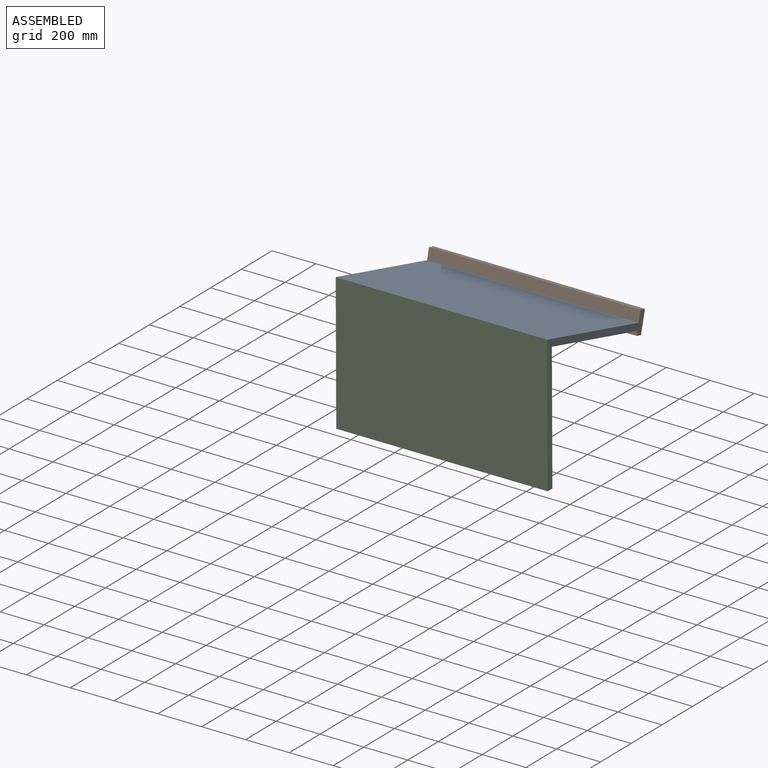
[diagram: assembled view]
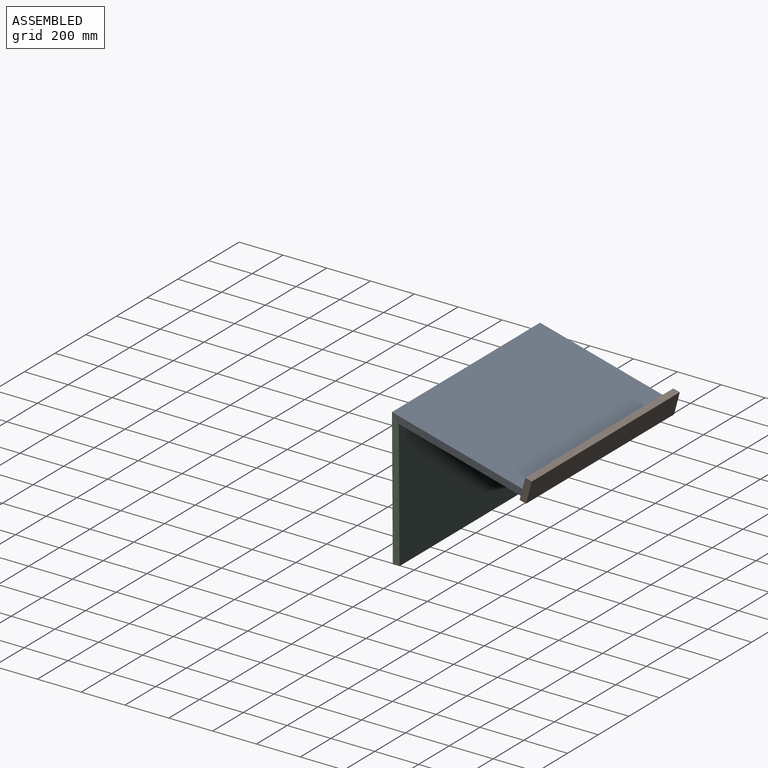
[diagram: assembled view, second angle]
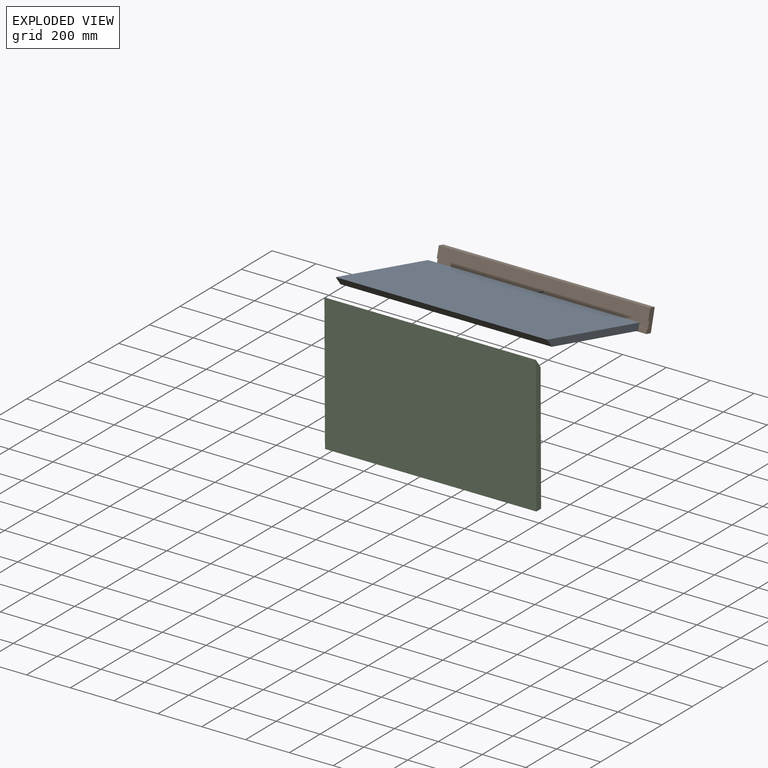
[diagram: exploded view]
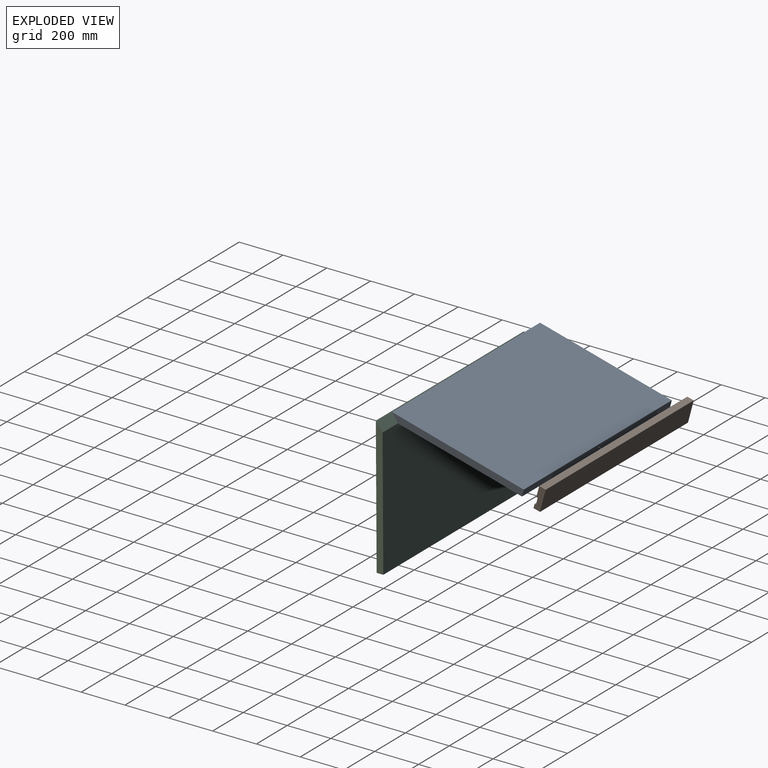
[diagram: exploded view, second angle]
ASSEMBLY  parts=3 mates=2
PART A: 6 faces, bbox 965.2x31.8x622.3 mm
  f0: plane 622.3x31.75mm, normal (1,0,0), area 19120mm2, adj f2,f3,f4,f5
  f1: plane 622.3x31.75mm, normal (-1,0,0), area 19120mm2, adj f2,f3,f4,f5
  f2: plane 965.2x31.75mm, normal (0,0,-1), area 30645.1mm2, adj f0,f1,f3,f4
  f3: plane 965.2x622.3mm, normal (0,-1,0), area 600644mm2, adj f0,f1,f2,f5
  f4: plane 965.2x582.11mm, normal (0,1,0), area 561854.5mm2, adj f0,f1,f2,f5
  f5: plane 965.2x40.19mm, normal (0,0.78,0.62), area 49434.3mm2, adj f0,f1,f3,f4
PART B: 10 faces, bbox 965.2x30.5x101.6 mm
  f0: plane 965.2x19.05mm, normal (0,-1,0), area 18387.1mm2, adj f1,f7,f8,f9
  f1: plane 965.2x30.48mm, normal (0,0,-1), area 29419.3mm2, adj f0,f2,f8,f9
  f2: plane 965.2x101.6mm, normal (0,1,0), area 98064.3mm2, adj f1,f3,f8,f9
  f3: plane 965.2x30.48mm, normal (0,0,1), area 29419.3mm2, adj f2,f4,f8,f9
  f4: plane 965.2x50.8mm, normal (0,-1,0), area 49032.2mm2, adj f3,f5,f8,f9
  f5: plane 965.2x6.35mm, normal (0,0,-1), area 6129mm2, adj f4,f6,f8,f9
  f6: plane 965.2x31.75mm, normal (0,-1,0), area 30645.1mm2, adj f5,f7,f8,f9
  f7: plane 965.2x6.35mm, normal (0,0,1), area 6129mm2, adj f0,f6,f8,f9
  f8: plane 101.6x30.48mm, normal (1,0,0), area 2895.2mm2, adj f0,f1,f2,f3,f4,f5,f6,f7
  f9: plane 101.6x30.48mm, normal (-1,0,0), area 2895.2mm2, adj f0,f1,f2,f3,f4,f5,f6,f7
PART C: 6 faces, bbox 965.2x30.5x627.1 mm
  f0: plane 627.06x30.48mm, normal (1,0,0), area 18485.6mm2, adj f2,f3,f4,f5
  f1: plane 627.06x30.48mm, normal (-1,0,0), area 18485.6mm2, adj f2,f3,f4,f5
  f2: plane 965.2x30.48mm, normal (0,0,-1), area 29419.3mm2, adj f0,f1,f3,f4
  f3: plane 965.2x627.06mm, normal (0,-1,0), area 605240.7mm2, adj f0,f1,f2,f5
  f4: plane 965.2x585.9mm, normal (0,1,0), area 565511.8mm2, adj f0,f1,f2,f5
  f5: plane 965.2x41.16mm, normal (0,0.8,0.6), area 49435.6mm2, adj f0,f1,f3,f4
PLACE A rot(axis=(0,0.61,-0.79),180deg) t=(-76.38,335.51,257.05)mm
PLACE B rot(axis=(-1,0,0),14.8deg) t=(-76.38,625.28,160.62)mm
PLACE C rot(axis=(1,0,0),0.3deg) t=(-76.38,75.19,54.04)mm
MATE fastened B.f6 <-> A.f2  axis (0,-0.97,0.26) through (-76.38,640.35,192.76)mm
MATE fastened A.f5 <-> C.f5  axis (0,-0.8,-0.6) through (-76.38,58.21,346.89)mm
